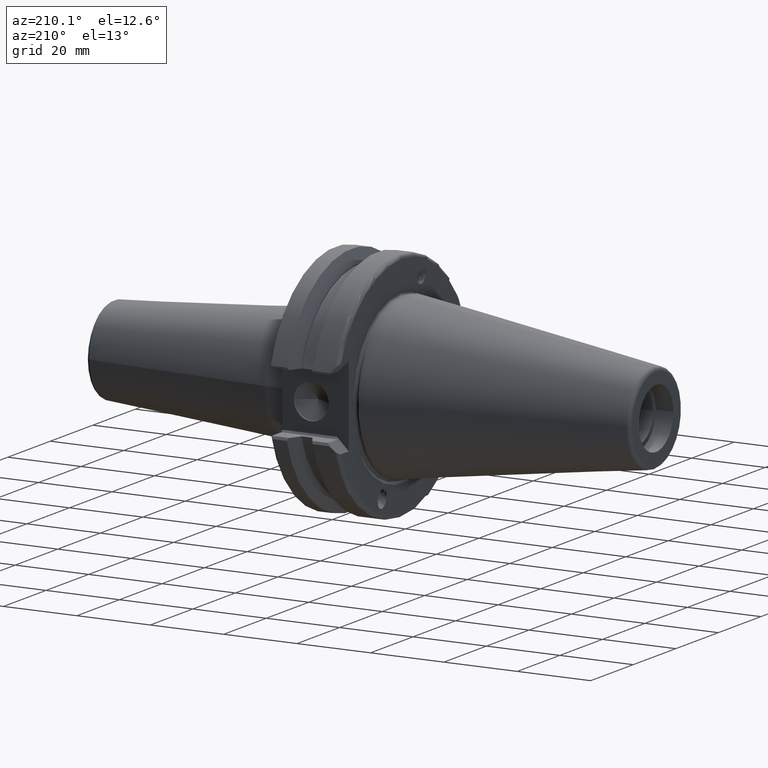
[diagram: clean part render]
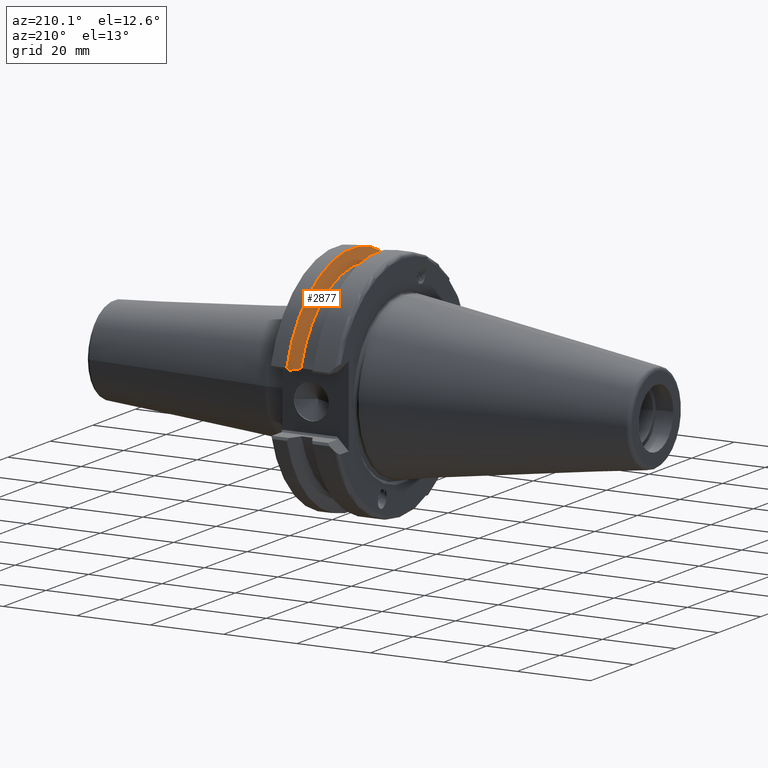
[diagram: same view with one face highlighted and labeled with its STEP entity id]
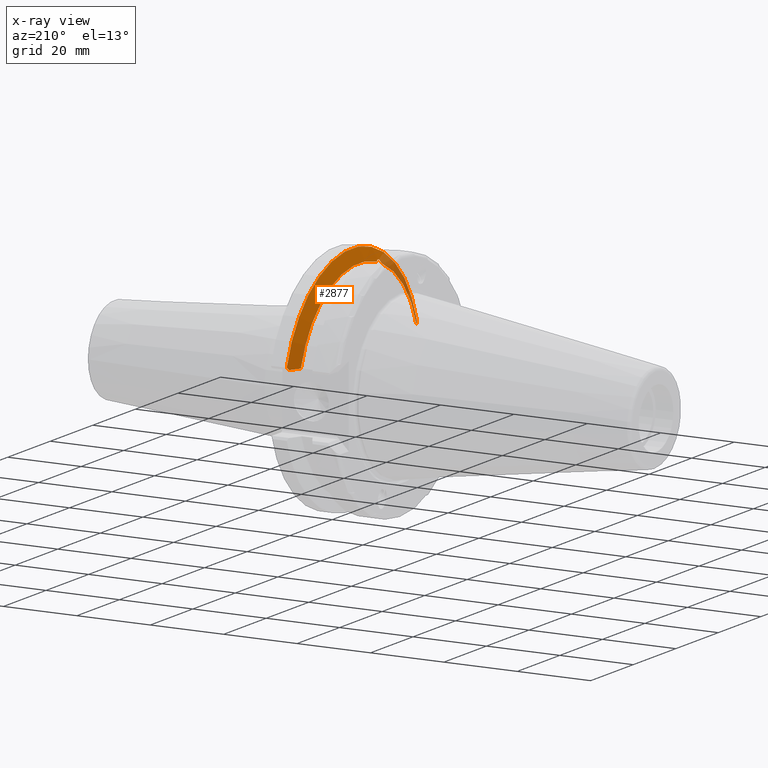
[diagram: x-ray of the same camera — body ghosted, the highlighted face saturated]
A machine part, auxiliary view. The second image highlights one B-rep face of the part: STEP entity #2877.
The next image is the same camera in x-ray: the body ghosted, the highlighted face saturated — about 12% of this face is hidden behind the body in this view.
In plain terms, the highlighted conical surface has half-angle 60 deg.
Its self-contained STEP definition (entity closure, byte-faithful):
#476=CARTESIAN_POINT('',(1.277249942683E1,-8.575268136318E0,2.708252619794E1));
#477=CARTESIAN_POINT('',(1.283861905739E1,-8.698086764688E0,2.716376388982E1));
#478=CARTESIAN_POINT('',(1.295661291925E1,-8.945000142881E0,2.729902656954E1));
#479=CARTESIAN_POINT('',(1.308944832353E1,-9.323980218562E0,2.741513818545E1));
#480=CARTESIAN_POINT('',(1.316738103024E1,-9.689504113775E0,2.743138412104E1));
#481=CARTESIAN_POINT('',(1.318395496575E1,-1.003428994943E1,2.733766252636E1));
#482=CARTESIAN_POINT('',(1.314497400637E1,-1.030594146063E1,2.716408278114E1));
#483=CARTESIAN_POINT('',(1.306045462679E1,-1.053472152938E1,2.691898615772E1));
#484=CARTESIAN_POINT('',(1.293760240626E1,-1.071234636555E1,2.661947753468E1));
#485=CARTESIAN_POINT('',(1.283135995051E1,-1.080200618521E1,2.638417320979E1));
#486=CARTESIAN_POINT('',(1.277249942683E1,-1.083927577496E1,2.625849480732E1));
#488=CARTESIAN_POINT('',(1.277249942683E1,0.E0,0.E0));
#489=DIRECTION('',(-1.E0,0.E0,0.E0));
#490=DIRECTION('',(0.E0,-3.018640251088E-1,9.533509901107E-1));
#491=AXIS2_PLACEMENT_3D('',#488,#489,#490);
#493=CARTESIAN_POINT('',(1.433535706711E1,3.001743493372E1,8.19E0));
#494=CARTESIAN_POINT('',(1.415630817509E1,2.969597722551E1,8.19E0));
#495=CARTESIAN_POINT('',(1.380179805129E1,2.905878749564E1,8.19E0));
#496=CARTESIAN_POINT('',(1.328086955106E1,2.812023287128E1,8.19E0));
#497=CARTESIAN_POINT('',(1.294075265584E1,2.750585952366E1,8.19E0));
#498=CARTESIAN_POINT('',(1.277249942683E1,2.720151372390E1,8.19E0));
#500=CARTESIAN_POINT('',(1.470216676908E1,3.049771389266E1,8.82904E0));
#501=CARTESIAN_POINT('',(1.464031873339E1,3.041720347945E1,8.721916059841E0));
#502=CARTESIAN_POINT('',(1.451733319324E1,3.025664728342E1,8.508286398163E0));
#503=CARTESIAN_POINT('',(1.439577636304E1,3.009701821501E1,8.295890335457E0));
#504=CARTESIAN_POINT('',(1.433535706711E1,3.001743493372E1,8.19E0));
#506=CARTESIAN_POINT('',(1.470216676908E1,0.E0,0.E0));
#507=DIRECTION('',(1.E0,0.E0,0.E0));
#508=DIRECTION('',(0.E0,9.605579178790E-1,2.7808E-1));
#509=AXIS2_PLACEMENT_3D('',#506,#507,#508);
#511=CARTESIAN_POINT('',(1.433535706711E1,-3.001743493372E1,8.19E0));
#512=CARTESIAN_POINT('',(1.439557652302E1,-3.009675498909E1,8.295540097571E0));
#513=CARTESIAN_POINT('',(1.451693151784E1,-3.025612137684E1,8.507586647877E0));
#514=CARTESIAN_POINT('',(1.464011693759E1,-3.041694079264E1,8.721566539265E0));
#515=CARTESIAN_POINT('',(1.470216676908E1,-3.049771389266E1,8.82904E0));
#517=CARTESIAN_POINT('',(1.277249942683E1,-2.720151372390E1,8.19E0));
#518=CARTESIAN_POINT('',(1.294065909229E1,-2.750569028071E1,8.19E0));
#519=CARTESIAN_POINT('',(1.328065079491E1,-2.811983810009E1,8.19E0));
#520=CARTESIAN_POINT('',(1.380157457966E1,-2.905838550266E1,8.19E0));
#521=CARTESIAN_POINT('',(1.415621223836E1,-2.969580498429E1,8.19E0));
#522=CARTESIAN_POINT('',(1.433535706711E1,-3.001743493372E1,8.19E0));
#524=CARTESIAN_POINT('',(1.277249942683E1,0.E0,0.E0));
#525=DIRECTION('',(-1.E0,0.E0,0.E0));
#526=DIRECTION('',(0.E0,-9.575395534250E-1,2.883019313613E-1));
#527=AXIS2_PLACEMENT_3D('',#524,#525,#526);
#1837=CARTESIAN_POINT('',(1.277249942683E1,2.720151372390E1,8.19E0));
#1838=VERTEX_POINT('',#1837);
#1861=CARTESIAN_POINT('',(1.277249942683E1,-2.720151372390E1,8.19E0));
#1862=VERTEX_POINT('',#1861);
#1941=VERTEX_POINT('',#500);
#1942=VERTEX_POINT('',#504);
#1957=CARTESIAN_POINT('',(1.433535706711E1,-3.001743493372E1,8.19E0));
#1958=VERTEX_POINT('',#1957);
#1959=VERTEX_POINT('',#515);
#2091=VERTEX_POINT('',#476);
#2092=VERTEX_POINT('',#486);
#2856=CARTESIAN_POINT('',(1.373733309795E1,0.E0,0.E0));
#2857=DIRECTION('',(1.E0,0.E0,0.E0));
#2858=DIRECTION('',(0.E0,0.E0,1.E0));
#2859=AXIS2_PLACEMENT_3D('',#2856,#2857,#2858);
#2860=CONICAL_SURFACE('',#2859,3.007885906076E1,6.E1);
#2862=ORIENTED_EDGE('',*,*,#2861,.F.);
#2864=ORIENTED_EDGE('',*,*,#2863,.T.);
#2865=ORIENTED_EDGE('',*,*,#2801,.F.);
#2866=ORIENTED_EDGE('',*,*,#2823,.F.);
#2868=ORIENTED_EDGE('',*,*,#2867,.T.);
#2870=ORIENTED_EDGE('',*,*,#2869,.F.);
#2872=ORIENTED_EDGE('',*,*,#2871,.F.);
#2874=ORIENTED_EDGE('',*,*,#2873,.T.);
#2875=EDGE_LOOP('',(#2862,#2864,#2865,#2866,#2868,#2870,#2872,#2874));
#2876=FACE_OUTER_BOUND('',#2875,.F.);
#2877=ADVANCED_FACE('',(#2876),#2860,.T.);
#487=B_SPLINE_CURVE_WITH_KNOTS('',3,(#476,#477,#478,#479,#480,#481,#482,#483,
#484,#485,#486),.UNSPECIFIED.,.F.,.F.,(4,1,1,1,1,1,1,1,4),(0.E0,1.25E-1,2.5E-1,
3.75E-1,5.E-1,6.25E-1,7.5E-1,8.75E-1,1.E0),.UNSPECIFIED.);
#492=CIRCLE('',#491,2.840771812152E1);
#499=B_SPLINE_CURVE_WITH_KNOTS('',3,(#493,#494,#495,#496,#497,#498),
.UNSPECIFIED.,.F.,.F.,(4,1,1,4),(0.E0,3.333333333333E-1,6.666666666667E-1,1.E0),
.UNSPECIFIED.);
#505=B_SPLINE_CURVE_WITH_KNOTS('',3,(#500,#501,#502,#503,#504),.UNSPECIFIED.,
.F.,.F.,(4,1,4),(0.E0,5.E-1,1.E0),.UNSPECIFIED.);
#510=CIRCLE('',#509,3.175E1);
#516=B_SPLINE_CURVE_WITH_KNOTS('',3,(#511,#512,#513,#514,#515),.UNSPECIFIED.,
.F.,.F.,(4,1,4),(0.E0,5.E-1,1.E0),.UNSPECIFIED.);
#523=B_SPLINE_CURVE_WITH_KNOTS('',3,(#517,#518,#519,#520,#521,#522),
.UNSPECIFIED.,.F.,.F.,(4,1,1,4),(0.E0,3.333333333333E-1,6.666666666667E-1,1.E0),
.UNSPECIFIED.);
#528=CIRCLE('',#527,2.840771812152E1);
#2801=EDGE_CURVE('',#1942,#1838,#499,.T.);
#2823=EDGE_CURVE('',#1941,#1942,#505,.T.);
#2861=EDGE_CURVE('',#2091,#2092,#487,.T.);
#2863=EDGE_CURVE('',#2091,#1838,#492,.T.);
#2867=EDGE_CURVE('',#1941,#1959,#510,.T.);
#2869=EDGE_CURVE('',#1958,#1959,#516,.T.);
#2871=EDGE_CURVE('',#1862,#1958,#523,.T.);
#2873=EDGE_CURVE('',#1862,#2092,#528,.T.);